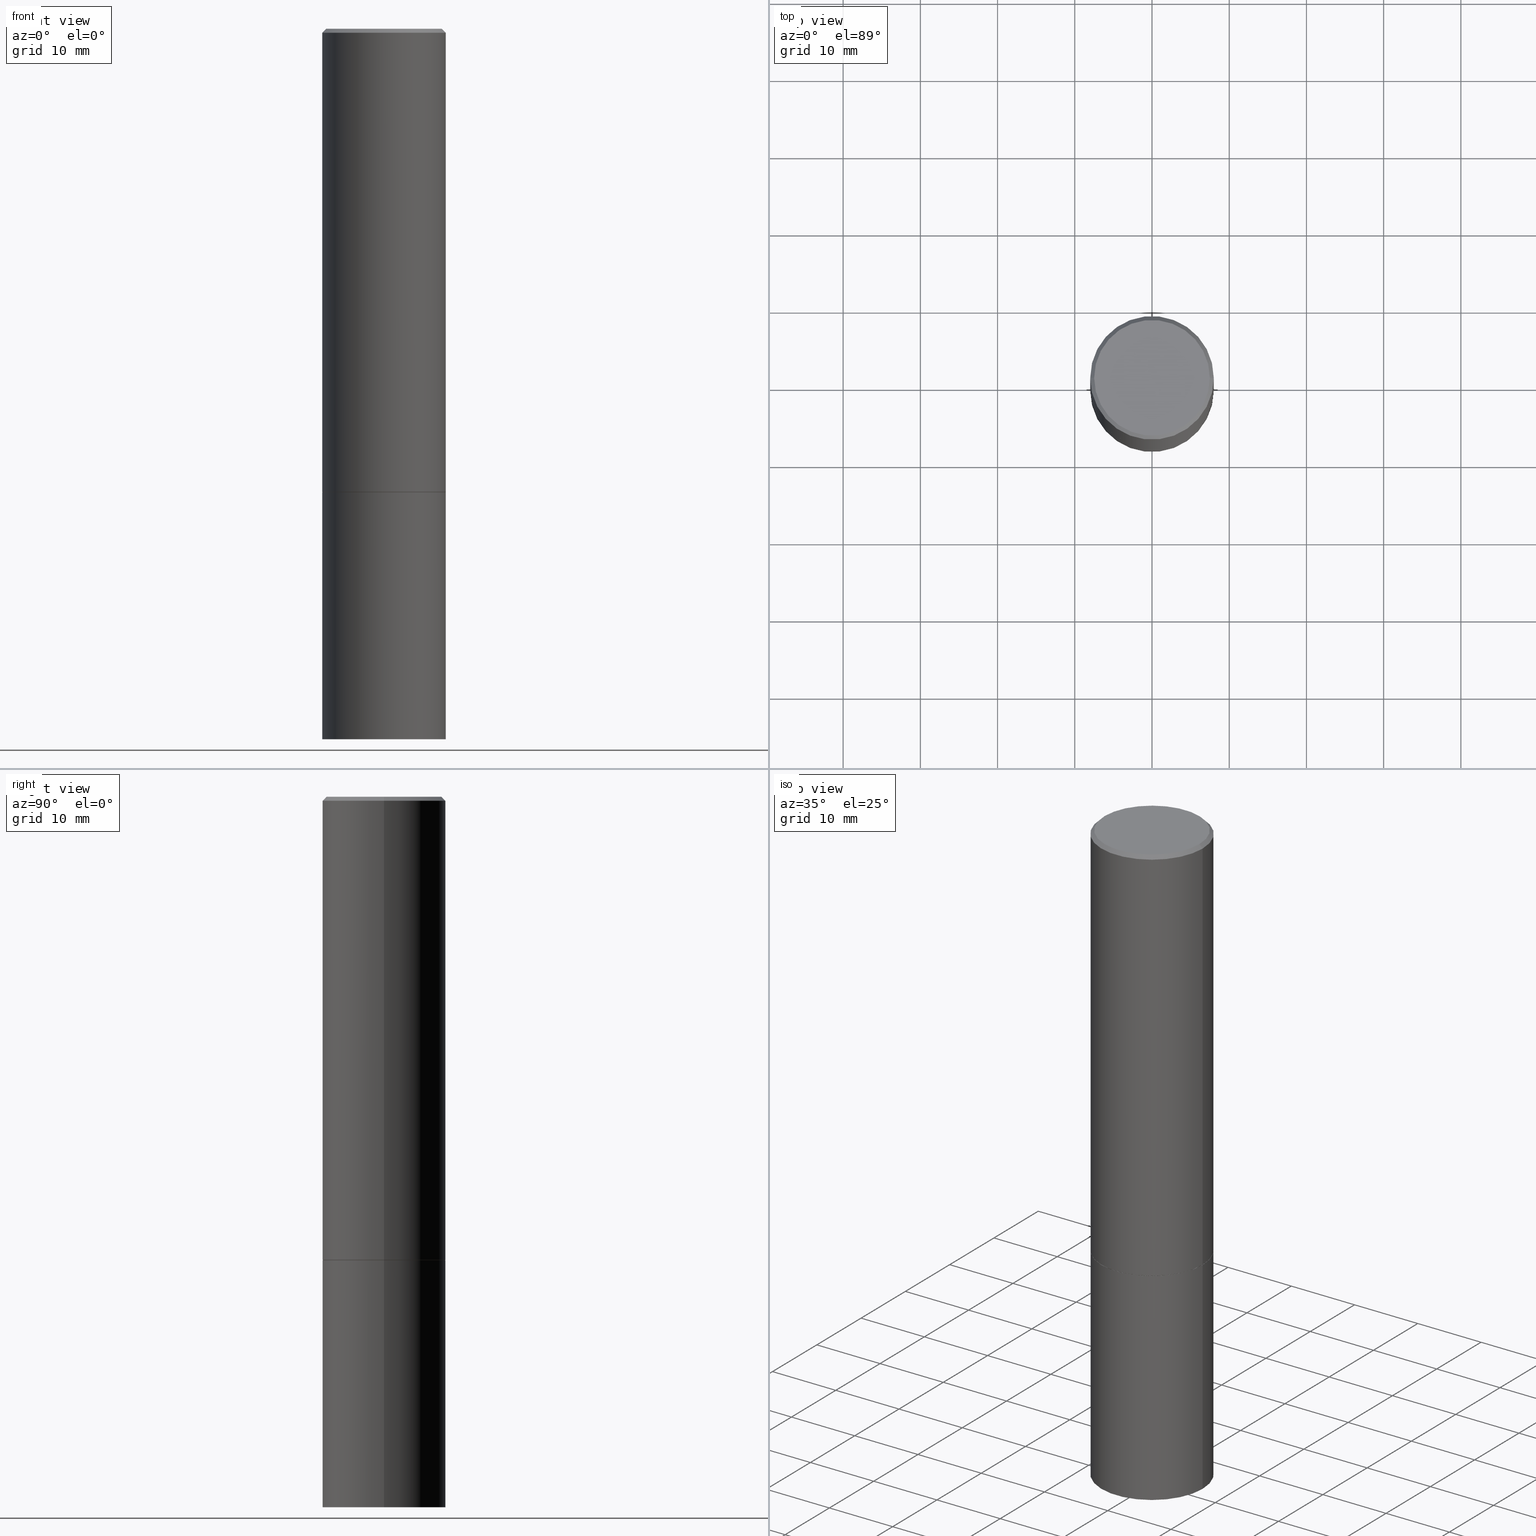
[diagram: canonical four-view strip — front | top / right | iso, engineering-drawing reading convention]
A machine part, canonical four-view strip (front | top / right | iso — engineering-drawing reading convention). The complete STEP part file that produces these views, byte-faithful:
ISO-10303-21;
HEADER;
FILE_DESCRIPTION (( 'STEP AP203' ),
    '1' );
FILE_NAME ('44538.STEP',
    '2024-02-28T06:25:11',
    ( '' ),
    ( '' ),
    'SwSTEP 2.0',
    'SolidWorks 2023',
    '' );
FILE_SCHEMA (( 'CONFIG_CONTROL_DESIGN' ));
ENDSEC;

DATA;
#1 = CARTESIAN_POINT ( 'NONE',  ( 5.774240945164344150E-29, -8.244085737276433464E-15, -2.361199999999999743 ) ) ;
#2 = AXIS2_PLACEMENT_3D ( 'NONE', #88, #201, #307 ) ;
#3 =( GEOMETRIC_REPRESENTATION_CONTEXT ( 3 ) GLOBAL_UNCERTAINTY_ASSIGNED_CONTEXT ( ( #100 ) ) GLOBAL_UNIT_ASSIGNED_CONTEXT ( ( #366, #140, #337 ) ) REPRESENTATION_CONTEXT ( 'NONE', 'WORKASPACE' ) );
#4 = APPROVAL_DATE_TIME ( #204, #15 ) ;
#5 = EDGE_CURVE ( 'NONE', #196, #302, #31, .T. ) ;
#6 = ORIENTED_EDGE ( 'NONE', *, *, #220, .T. ) ;
#7 = PERSON_AND_ORGANIZATION ( #300, #292 ) ;
#8 = EDGE_LOOP ( 'NONE', ( #63, #203, #6, #106 ) ) ;
#9 = CIRCLE ( 'NONE', #60, 0.3149500000000000077 ) ;
#10 = ORIENTED_EDGE ( 'NONE', *, *, #91, .T. ) ;
#11 = AXIS2_PLACEMENT_3D ( 'NONE', #166, #356, #363 ) ;
#12 = CARTESIAN_POINT ( 'NONE',  ( -0.3149499999999997302, 2.129454468560424601E-15, -0.02000000000000007327 ) ) ;
#13 = DESIGN_CONTEXT ( 'detailed design', #90, 'design' ) ;
#14 = CARTESIAN_POINT ( 'NONE',  ( 4.890937612370290675E-31, -6.982962677686316261E-17, -0.02000000000000007327 ) ) ;
#15 = APPROVAL ( #249, 'UNSPECIFIED' ) ;
#16 = FACE_OUTER_BOUND ( 'NONE', #294, .T. ) ;
#17 = DIRECTION ( 'NONE',  ( -2.445468806185136597E-29, 3.491481338843145583E-15, 1.000000000000000000 ) ) ;
#18 = CLOSED_SHELL ( 'NONE', ( #102, #144, #159, #365 ) ) ;
#19 = AXIS2_PLACEMENT_3D ( 'NONE', #242, #219, #263 ) ;
#20 = CARTESIAN_POINT ( 'NONE',  ( -0.3149499999999997302, 2.129454468560424601E-15, -0.02000000000000007327 ) ) ;
#21 = EDGE_CURVE ( 'NONE', #364, #111, #252, .T. ) ;
#22 = DIRECTION ( 'NONE',  ( -0.7071067811865466846, 2.468850131082247989E-15, -0.7071067811865483499 ) ) ;
#23 =( LENGTH_UNIT ( ) NAMED_UNIT ( * ) SI_UNIT ( $, .METRE. ) );
#24 = AXIS2_PLACEMENT_3D ( 'NONE', #154, #350, #288 ) ;
#25 = DIRECTION ( 'NONE',  ( -2.445468806185136597E-29, 3.491481338843145583E-15, 1.000000000000000000 ) ) ;
#26 = ADVANCED_FACE ( 'NONE', ( #94 ), #39, .F. ) ;
#27 = ORIENTED_EDGE ( 'NONE', *, *, #21, .F. ) ;
#28 = APPROVAL_STATUS ( 'not_yet_approved' ) ;
#29 = CARTESIAN_POINT ( 'NONE',  ( 0.000000000000000000, 0.000000000000000000, 0.000000000000000000 ) ) ;
#30 = CALENDAR_DATE ( 2024, 28, 2 ) ;
#31 = LINE ( 'NONE', #313, #68 ) ;
#32 = VECTOR ( 'NONE', #237, 39.37007874015748143 ) ;
#33 = CC_DESIGN_SECURITY_CLASSIFICATION ( #182, ( #158 ) ) ;
#34 = EDGE_LOOP ( 'NONE', ( #207, #37, #340, #27 ) ) ;
#35 = EDGE_CURVE ( 'NONE', #364, #341, #285, .T. ) ;
#36 = PERSON_AND_ORGANIZATION ( #300, #292 ) ;
#37 = ORIENTED_EDGE ( 'NONE', *, *, #139, .T. ) ;
#38 = ORIENTED_EDGE ( 'NONE', *, *, #359, .T. ) ;
#39 = PLANE ( 'NONE',  #86 ) ;
#40 = ORIENTED_EDGE ( 'NONE', *, *, #58, .F. ) ;
#41 = ADVANCED_FACE ( 'NONE', ( #223 ), #248, .T. ) ;
#42 = DIRECTION ( 'NONE',  ( -2.445468806185136597E-29, 3.491481338843145583E-15, 1.000000000000000000 ) ) ;
#43 = FACE_OUTER_BOUND ( 'NONE', #284, .T. ) ;
#44 = LINE ( 'NONE', #293, #32 ) ;
#45 = LOCAL_TIME ( 1, 25, 11.00000000000000000, #274 ) ;
#46 = FACE_OUTER_BOUND ( 'NONE', #177, .T. ) ;
#47 = DIRECTION ( 'NONE',  ( -2.445468806185136597E-29, 3.491481338843145583E-15, 1.000000000000000000 ) ) ;
#48 = APPROVAL_PERSON_ORGANIZATION ( #169, #197, #308 ) ;
#49 = DIRECTION ( 'NONE',  ( -2.445468806185136597E-29, 3.491481338843145583E-15, 1.000000000000000000 ) ) ;
#50 = DIRECTION ( 'NONE',  ( 1.000000000000000000, -6.982962677686263555E-15, 0.000000000000000000 ) ) ;
#51 = ORIENTED_EDGE ( 'NONE', *, *, #258, .T. ) ;
#52 = DIRECTION ( 'NONE',  ( -2.445468806185136597E-29, 3.491481338843145583E-15, 1.000000000000000000 ) ) ;
#53 = CALENDAR_DATE ( 2024, 28, 2 ) ;
#54 = MECHANICAL_CONTEXT ( 'NONE', #64, 'mechanical' ) ;
#55 = CARTESIAN_POINT ( 'NONE',  ( -0.3139500000000000624, -6.011529845348221459E-15, -2.362200000000000077 ) ) ;
#56 = COORDINATED_UNIVERSAL_TIME_OFFSET ( 5, 0, .BEHIND. ) ;
#57 = ORIENTED_EDGE ( 'NONE', *, *, #165, .T. ) ;
#58 = EDGE_CURVE ( 'NONE', #141, #111, #107, .T. ) ;
#59 = VERTEX_POINT ( 'NONE', #55 ) ;
#60 = AXIS2_PLACEMENT_3D ( 'NONE', #238, #267, #50 ) ;
#61 = APPROVAL_PERSON_ORGANIZATION ( #36, #336, #89 ) ;
#62 = DIRECTION ( 'NONE',  ( 0.000000000000000000, 0.000000000000000000, 1.000000000000000000 ) ) ;
#63 = ORIENTED_EDGE ( 'NONE', *, *, #91, .F. ) ;
#64 = APPLICATION_CONTEXT ( 'configuration controlled 3d designs of mechanical parts and assemblies' ) ;
#65 = CARTESIAN_POINT ( 'NONE',  ( 5.776686413970529753E-29, -8.247577218615279626E-15, -2.362200000000000077 ) ) ;
#66 = ORIENTED_EDGE ( 'NONE', *, *, #21, .T. ) ;
#67 = CARTESIAN_POINT ( 'NONE',  ( 5.776686413970529753E-29, -8.247577218615279626E-15, -2.362200000000000077 ) ) ;
#68 = VECTOR ( 'NONE', #110, 39.37007874015748143 ) ;
#69 = ORIENTED_EDGE ( 'NONE', *, *, #5, .F. ) ;
#70 = DIMENSIONAL_EXPONENTS ( 1.000000000000000000, 0.000000000000000000, 0.000000000000000000, 0.000000000000000000, 0.000000000000000000, 0.000000000000000000, 0.000000000000000000 ) ;
#71 = PLANE ( 'NONE',  #235 ) ;
#72 = EDGE_LOOP ( 'NONE', ( #69, #212, #327, #191 ) ) ;
#73 = EDGE_CURVE ( 'NONE', #148, #364, #171, .T. ) ;
#74 = CIRCLE ( 'NONE', #79, 0.3139500000000000624 ) ;
#75 = DIRECTION ( 'NONE',  ( -2.445468806185136597E-29, 3.491481338843145583E-15, 1.000000000000000000 ) ) ;
#76 = CARTESIAN_POINT ( 'NONE',  ( 4.890937612370290675E-31, -6.982962677686316261E-17, -0.02000000000000007327 ) ) ;
#77 = CARTESIAN_POINT ( 'NONE',  ( 0.000000000000000000, 0.000000000000000000, 0.000000000000000000 ) ) ;
#78 = ORIENTED_EDGE ( 'NONE', *, *, #332, .T. ) ;
#79 = AXIS2_PLACEMENT_3D ( 'NONE', #67, #75, #181 ) ;
#80 = AXIS2_PLACEMENT_3D ( 'NONE', #301, #49, #164 ) ;
#81 = DIRECTION ( 'NONE',  ( 1.000000000000000000, -6.982962677686266711E-15, 4.876176775795936353E-29 ) ) ;
#82 = CC_DESIGN_DATE_AND_TIME_ASSIGNMENT ( #344, #87, ( #112 ) ) ;
#83 = CARTESIAN_POINT ( 'NONE',  ( 8.857488016002564476E-29, -1.264614540928987199E-14, -3.621999999999999886 ) ) ;
#84 = ORIENTED_EDGE ( 'NONE', *, *, #139, .F. ) ;
#85 = DIRECTION ( 'NONE',  ( -0.7071067811864026886, 7.493145998869830357E-15, 0.7071067811866923458 ) ) ;
#86 = AXIS2_PLACEMENT_3D ( 'NONE', #345, #179, #315 ) ;
#87 = DATE_TIME_ROLE ( 'creation_date' ) ;
#88 = CARTESIAN_POINT ( 'NONE',  ( 4.890937612370290675E-31, -6.982962677686316261E-17, -0.02000000000000007327 ) ) ;
#89 = APPROVAL_ROLE ( '' ) ;
#90 = APPLICATION_CONTEXT ( 'configuration controlled 3d designs of mechanical parts and assemblies' ) ;
#91 = EDGE_CURVE ( 'NONE', #303, #111, #99, .T. ) ;
#92 = ORIENTED_EDGE ( 'NONE', *, *, #213, .F. ) ;
#93 = CONICAL_SURFACE ( 'NONE', #128, 0.3149499999999997302, 0.7853981633974471688 ) ;
#94 = FACE_OUTER_BOUND ( 'NONE', #347, .T. ) ;
#95 = ORIENTED_EDGE ( 'NONE', *, *, #268, .T. ) ;
#96 = CC_DESIGN_PERSON_AND_ORGANIZATION_ASSIGNMENT ( #7, #138, ( #112 ) ) ;
#97 = CALENDAR_DATE ( 2024, 28, 2 ) ;
#98 = DIRECTION ( 'NONE',  ( 1.000000000000000000, -6.982962677686263555E-15, 0.000000000000000000 ) ) ;
#99 = LINE ( 'NONE', #255, #142 ) ;
#100 = UNCERTAINTY_MEASURE_WITH_UNIT (LENGTH_MEASURE( 1.000000000000000082E-05 ), #366, 'distance_accuracy_value', 'NONE');
#101 = FACE_OUTER_BOUND ( 'NONE', #173, .T. ) ;
#102 = ADVANCED_FACE ( 'NONE', ( #16 ), #184, .T. ) ;
#103 = DIRECTION ( 'NONE',  ( -1.000000000000000000, 6.982962677686265922E-15, -4.876176775795935793E-29 ) ) ;
#104 = FACE_OUTER_BOUND ( 'NONE', #333, .T. ) ;
#105 = DIRECTION ( 'NONE',  ( -2.445468806185136597E-29, 3.491481338843145583E-15, 1.000000000000000000 ) ) ;
#106 = ORIENTED_EDGE ( 'NONE', *, *, #58, .T. ) ;
#107 = CIRCLE ( 'NONE', #2, 0.3149499999999997302 ) ;
#108 = DIRECTION ( 'NONE',  ( 2.445468806185136597E-29, -3.491481338843145583E-15, -1.000000000000000000 ) ) ;
#109 = PLANE ( 'NONE',  #355 ) ;
#110 = DIRECTION ( 'NONE',  ( -2.445468806185136877E-29, 3.491481338843145188E-15, 1.000000000000000000 ) ) ;
#111 = VERTEX_POINT ( 'NONE', #125 ) ;
#112 = PRODUCT_DEFINITION ( 'UNKNOWN', '', #158, #13 ) ;
#113 = DATE_TIME_ROLE ( 'classification_date' ) ;
#114 = CIRCLE ( 'NONE', #361, 0.3149499999999997302 ) ;
#115 = DIRECTION ( 'NONE',  ( -2.445468806185136597E-29, 3.491481338843145583E-15, 1.000000000000000000 ) ) ;
#116 = VERTEX_POINT ( 'NONE', #256 ) ;
#117 = PERSON_AND_ORGANIZATION_ROLE ( 'creator' ) ;
#118 = APPROVAL_DATE_TIME ( #278, #336 ) ;
#119 = ORIENTED_EDGE ( 'NONE', *, *, #73, .T. ) ;
#120 = PERSON_AND_ORGANIZATION_ROLE ( 'design_supplier' ) ;
#121 = ORIENTED_EDGE ( 'NONE', *, *, #268, .F. ) ;
#122 = ORIENTED_EDGE ( 'NONE', *, *, #187, .F. ) ;
#123 = DIRECTION ( 'NONE',  ( -1.000000000000000000, 6.982962677686265922E-15, -4.876176775795935793E-29 ) ) ;
#124 = DIRECTION ( 'NONE',  ( 1.000000000000000000, -6.982962677686266711E-15, 4.876176775795936353E-29 ) ) ;
#125 = CARTESIAN_POINT ( 'NONE',  ( 0.3149499999999997302, -2.230543471175005478E-15, -0.02000000000000007327 ) ) ;
#126 = CC_DESIGN_PERSON_AND_ORGANIZATION_ASSIGNMENT ( #271, #251, ( #182 ) ) ;
#127 = CARTESIAN_POINT ( 'NONE',  ( 5.776686413970529753E-29, -8.247577218615278049E-15, -2.362199999999999633 ) ) ;
#128 = AXIS2_PLACEMENT_3D ( 'NONE', #14, #322, #155 ) ;
#129 = APPROVAL_PERSON_ORGANIZATION ( #143, #15, #200 ) ;
#130 = CARTESIAN_POINT ( 'NONE',  ( 5.776686413970529753E-29, -8.247577218615279626E-15, -2.362200000000000077 ) ) ;
#131 = ORIENTED_EDGE ( 'NONE', *, *, #351, .F. ) ;
#132 = DIRECTION ( 'NONE',  ( -1.000000000000000000, 6.982962677686265922E-15, -4.876176775795935793E-29 ) ) ;
#133 = PRODUCT_DEFINITION_SHAPE ( 'NONE', 'NONE',  #112 ) ;
#134 = EDGE_CURVE ( 'NONE', #116, #280, #160, .T. ) ;
#135 = CIRCLE ( 'NONE', #211, 0.3149500000000000077 ) ;
#136 = CIRCLE ( 'NONE', #189, 0.3149500000000000077 ) ;
#137 = CARTESIAN_POINT ( 'NONE',  ( -0.2949499999999997124, 2.094539655171993740E-15, 4.268512490085885145E-18 ) ) ;
#138 = PERSON_AND_ORGANIZATION_ROLE ( 'creator' ) ;
#139 = EDGE_CURVE ( 'NONE', #341, #141, #44, .T. ) ;
#140 =( NAMED_UNIT ( * ) PLANE_ANGLE_UNIT ( ) SI_UNIT ( $, .RADIAN. ) );
#141 = VERTEX_POINT ( 'NONE', #12 ) ;
#142 = VECTOR ( 'NONE', #190, 39.37007874015748143 ) ;
#143 = PERSON_AND_ORGANIZATION ( #300, #292 ) ;
#144 = ADVANCED_FACE ( 'NONE', ( #46 ), #257, .T. ) ;
#145 = ORIENTED_EDGE ( 'NONE', *, *, #359, .F. ) ;
#146 = ORIENTED_EDGE ( 'NONE', *, *, #273, .T. ) ;
#147 = ORIENTED_EDGE ( 'NONE', *, *, #187, .T. ) ;
#148 = VERTEX_POINT ( 'NONE', #349 ) ;
#149 = AXIS2_PLACEMENT_3D ( 'NONE', #348, #42, #124 ) ;
#150 = DIRECTION ( 'NONE',  ( -2.445468806185136597E-29, 3.491481338843145583E-15, 1.000000000000000000 ) ) ;
#151 = AXIS2_PLACEMENT_3D ( 'NONE', #130, #295, #357 ) ;
#152 = DATE_AND_TIME ( #320, #265 ) ;
#153 = ADVANCED_FACE ( 'NONE', ( #185 ), #93, .T. ) ;
#154 = CARTESIAN_POINT ( 'NONE',  ( -1.043851414335219820E-46, 1.490343170380447200E-32, 4.268512490100411279E-18 ) ) ;
#155 = DIRECTION ( 'NONE',  ( -1.000000000000000000, 6.982962677686266711E-15, 0.000000000000000000 ) ) ;
#156 = VECTOR ( 'NONE', #22, 39.37007874015748143 ) ;
#157 = VECTOR ( 'NONE', #85, 39.37007874015748143 ) ;
#158 = PRODUCT_DEFINITION_FORMATION_WITH_SPECIFIED_SOURCE ( 'ANY', '', #202, .NOT_KNOWN. ) ;
#159 = ADVANCED_FACE ( 'NONE', ( #101 ), #71, .F. ) ;
#160 = LINE ( 'NONE', #260, #309 ) ;
#161 = CARTESIAN_POINT ( 'NONE',  ( 2.059624841783562091E-15, 0.2949499999999997124, -1.027678164646734579E-15 ) ) ;
#162 = DIRECTION ( 'NONE',  ( 1.000000000000000000, -6.982962677686267499E-15, 4.876053491004739391E-29 ) ) ;
#163 = AXIS2_PLACEMENT_3D ( 'NONE', #360, #25, #81 ) ;
#164 = DIRECTION ( 'NONE',  ( 1.000000000000000000, -6.982962677686266711E-15, 0.000000000000000000 ) ) ;
#165 = EDGE_CURVE ( 'NONE', #247, #303, #218, .T. ) ;
#166 = CARTESIAN_POINT ( 'NONE',  ( 5.774240945164344150E-29, -8.244085737276433464E-15, -2.361199999999999743 ) ) ;
#167 = CYLINDRICAL_SURFACE ( 'NONE', #163, 0.3149500000000000077 ) ;
#168 = EDGE_LOOP ( 'NONE', ( #147, #95, #316, #321 ) ) ;
#169 = PERSON_AND_ORGANIZATION ( #300, #292 ) ;
#170 = CC_DESIGN_PERSON_AND_ORGANIZATION_ASSIGNMENT ( #312, #178, ( #202 ) ) ;
#171 = LINE ( 'NONE', #346, #297 ) ;
#172 = COORDINATED_UNIVERSAL_TIME_OFFSET ( 5, 0, .BEHIND. ) ;
#173 = EDGE_LOOP ( 'NONE', ( #334, #146 ) ) ;
#174 = DIRECTION ( 'NONE',  ( 1.000000000000000000, 0.000000000000000000, 0.000000000000000000 ) ) ;
#175 = CC_DESIGN_APPROVAL ( #15, ( #158 ) ) ;
#176 = ORIENTED_EDGE ( 'NONE', *, *, #281, .T. ) ;
#177 = EDGE_LOOP ( 'NONE', ( #250, #92 ) ) ;
#178 = PERSON_AND_ORGANIZATION_ROLE ( 'design_owner' ) ;
#179 = DIRECTION ( 'NONE',  ( -2.438088387897960049E-29, 3.491481338843145188E-15, 1.000000000000000000 ) ) ;
#180 = DIRECTION ( 'NONE',  ( 1.000000000000000000, -6.982962677686265133E-15, 0.000000000000000000 ) ) ;
#181 = DIRECTION ( 'NONE',  ( 1.000000000000000000, -6.982962677686265133E-15, 0.000000000000000000 ) ) ;
#182 = SECURITY_CLASSIFICATION ( '', '', #229 ) ;
#183 = ADVANCED_FACE ( 'NONE', ( #214 ), #318, .T. ) ;
#184 = CYLINDRICAL_SURFACE ( 'NONE', #149, 0.3149500000000000077 ) ;
#185 = FACE_OUTER_BOUND ( 'NONE', #8, .T. ) ;
#186 = ORIENTED_EDGE ( 'NONE', *, *, #134, .F. ) ;
#187 = EDGE_CURVE ( 'NONE', #148, #59, #74, .T. ) ;
#188 = CLOSED_SHELL ( 'NONE', ( #41, #183, #205, #153, #289, #227, #26, #299 ) ) ;
#189 = AXIS2_PLACEMENT_3D ( 'NONE', #127, #105, #193 ) ;
#190 = DIRECTION ( 'NONE',  ( 0.7071067811865466846, -7.319954787623252890E-15, -0.7071067811865483499 ) ) ;
#191 = ORIENTED_EDGE ( 'NONE', *, *, #273, .F. ) ;
#192 = CARTESIAN_POINT ( 'NONE',  ( -0.3139500000000000624, -6.016828299696443861E-15, -2.362200000000000077 ) ) ;
#193 = DIRECTION ( 'NONE',  ( 1.000000000000000000, -6.982962677686266711E-15, 0.000000000000000000 ) ) ;
#194 = DIRECTION ( 'NONE',  ( -1.000000000000000000, 6.982962677686266711E-15, 0.000000000000000000 ) ) ;
#195 = LINE ( 'NONE', #192, #157 ) ;
#196 = VERTEX_POINT ( 'NONE', #287 ) ;
#197 = APPROVAL ( #28, 'UNSPECIFIED' ) ;
#198 = LINE ( 'NONE', #20, #156 ) ;
#199 = AXIS2_PLACEMENT_3D ( 'NONE', #29, #62, #174 ) ;
#200 = APPROVAL_ROLE ( '' ) ;
#201 = DIRECTION ( 'NONE',  ( -2.445468806185136597E-29, 3.491481338843145583E-15, 1.000000000000000000 ) ) ;
#202 = PRODUCT ( '44538', '44538', '', ( #54 ) ) ;
#203 = ORIENTED_EDGE ( 'NONE', *, *, #165, .F. ) ;
#204 = DATE_AND_TIME ( #226, #338 ) ;
#205 = ADVANCED_FACE ( 'NONE', ( #43 ), #310, .T. ) ;
#206 = CIRCLE ( 'NONE', #11, 0.3149500000000000077 ) ;
#207 = ORIENTED_EDGE ( 'NONE', *, *, #35, .T. ) ;
#208 = DATE_AND_TIME ( #97, #343 ) ;
#209 = EDGE_LOOP ( 'NONE', ( #121, #51, #119, #276 ) ) ;
#210 = CARTESIAN_POINT ( 'NONE',  ( 2.199284095337378223E-15, 0.3149499999999873512, -3.622000000000000774 ) ) ;
#211 = AXIS2_PLACEMENT_3D ( 'NONE', #83, #17, #240 ) ;
#212 = ORIENTED_EDGE ( 'NONE', *, *, #213, .T. ) ;
#213 = EDGE_CURVE ( 'NONE', #196, #116, #9, .T. ) ;
#214 = FACE_OUTER_BOUND ( 'NONE', #34, .T. ) ;
#215 = DIRECTION ( 'NONE',  ( -2.445468806185136597E-29, 3.491481338843145583E-15, 1.000000000000000000 ) ) ;
#216 = FACE_OUTER_BOUND ( 'NONE', #228, .T. ) ;
#217 = CARTESIAN_POINT ( 'NONE',  ( 0.3149500000000000077, -1.044686131395256792E-14, -2.362199999999999633 ) ) ;
#218 = CIRCLE ( 'NONE', #24, 0.2949499999999997124 ) ;
#219 = DIRECTION ( 'NONE',  ( -2.445468806185136597E-29, 3.491481338843145583E-15, 1.000000000000000000 ) ) ;
#220 = EDGE_CURVE ( 'NONE', #247, #141, #198, .T. ) ;
#221 = CARTESIAN_POINT ( 'NONE',  ( 0.2949499999999997124, -2.127023677808858103E-15, 4.268512490115050658E-18 ) ) ;
#222 = APPLICATION_PROTOCOL_DEFINITION ( 'international standard', 'config_control_design', 1994, #90 ) ;
#223 = FACE_OUTER_BOUND ( 'NONE', #168, .T. ) ;
#224 = AXIS2_PLACEMENT_3D ( 'NONE', #77, #244, #304 ) ;
#225 = LENGTH_MEASURE_WITH_UNIT ( LENGTH_MEASURE( 0.02539999999999999897 ), #23 );
#226 = CALENDAR_DATE ( 2024, 28, 2 ) ;
#227 = ADVANCED_FACE ( 'NONE', ( #241 ), #354, .T. ) ;
#228 = EDGE_LOOP ( 'NONE', ( #57, #38 ) ) ;
#229 = SECURITY_CLASSIFICATION_LEVEL ( 'unclassified' ) ;
#230 = CARTESIAN_POINT ( 'NONE',  ( 0.3149499999999998967, -2.199284095337288688E-15, 1.535751875536929289E-29 ) ) ;
#231 = CC_DESIGN_PERSON_AND_ORGANIZATION_ASSIGNMENT ( #245, #120, ( #158 ) ) ;
#232 = CARTESIAN_POINT ( 'NONE',  ( 2.199284095337347063E-15, 0.3149499999999917366, -2.362200000000000966 ) ) ;
#233 = DIRECTION ( 'NONE',  ( 0.7071067811864026886, -2.468850131080739687E-15, 0.7071067811866923458 ) ) ;
#234 = MANIFOLD_SOLID_BREP ( 'Body-Move/Copy2[1]', #18 ) ;
#235 = AXIS2_PLACEMENT_3D ( 'NONE', #232, #259, #103 ) ;
#236 = EDGE_CURVE ( 'NONE', #116, #196, #135, .T. ) ;
#237 = DIRECTION ( 'NONE',  ( -2.445468806185136877E-29, 3.491481338843145188E-15, 1.000000000000000000 ) ) ;
#238 = CARTESIAN_POINT ( 'NONE',  ( 8.857488016002564476E-29, -1.264614540928987199E-14, -3.621999999999999886 ) ) ;
#239 = CIRCLE ( 'NONE', #286, 0.2949499999999997124 ) ;
#240 = DIRECTION ( 'NONE',  ( 1.000000000000000000, -6.982962677686263555E-15, 0.000000000000000000 ) ) ;
#241 = FACE_OUTER_BOUND ( 'NONE', #209, .T. ) ;
#242 = CARTESIAN_POINT ( 'NONE',  ( 5.776686413970529753E-29, -8.247577218615279626E-15, -2.362200000000000077 ) ) ;
#243 = LOCAL_TIME ( 1, 25, 11.00000000000000000, #172 ) ;
#244 = DIRECTION ( 'NONE',  ( -2.445468806185136597E-29, 3.491481338843145583E-15, 1.000000000000000000 ) ) ;
#245 = PERSON_AND_ORGANIZATION ( #300, #292 ) ;
#246 = COORDINATED_UNIVERSAL_TIME_OFFSET ( 5, 0, .BEHIND. ) ;
#247 = VERTEX_POINT ( 'NONE', #137 ) ;
#248 = CONICAL_SURFACE ( 'NONE', #342, 0.3139500000000000624, 0.7853981633972434429 ) ;
#249 = APPROVAL_STATUS ( 'not_yet_approved' ) ;
#250 = ORIENTED_EDGE ( 'NONE', *, *, #236, .F. ) ;
#251 = PERSON_AND_ORGANIZATION_ROLE ( 'classification_officer' ) ;
#252 = LINE ( 'NONE', #230, #264 ) ;
#253 = PERSON_AND_ORGANIZATION ( #300, #292 ) ;
#254 = CC_DESIGN_DATE_AND_TIME_ASSIGNMENT ( #208, #113, ( #182 ) ) ;
#255 = CARTESIAN_POINT ( 'NONE',  ( 0.3149499999999997302, -2.230543471175005478E-15, -0.02000000000000007327 ) ) ;
#256 = CARTESIAN_POINT ( 'NONE',  ( 0.3149500000000000077, -1.484542950462716186E-14, -3.621999999999999886 ) ) ;
#257 = PLANE ( 'NONE',  #325 ) ;
#258 = EDGE_CURVE ( 'NONE', #59, #148, #305, .T. ) ;
#259 = DIRECTION ( 'NONE',  ( 2.438088387897960049E-29, -3.491481338843145188E-15, -1.000000000000000000 ) ) ;
#260 = CARTESIAN_POINT ( 'NONE',  ( 0.3149500000000000077, -2.199284095337289871E-15, 1.535751875536930130E-29 ) ) ;
#261 = CARTESIAN_POINT ( 'NONE',  ( -0.3149500000000000077, -8.209006967676139823E-15, -2.362199999999999633 ) ) ;
#262 = PRODUCT_RELATED_PRODUCT_CATEGORY ( 'detail', '', ( #202 ) ) ;
#263 = DIRECTION ( 'NONE',  ( 1.000000000000000000, -6.982962677686265133E-15, 0.000000000000000000 ) ) ;
#264 = VECTOR ( 'NONE', #282, 39.37007874015748143 ) ;
#265 = LOCAL_TIME ( 1, 25, 11.00000000000000000, #56 ) ;
#266 = ORIENTED_EDGE ( 'NONE', *, *, #258, .F. ) ;
#267 = DIRECTION ( 'NONE',  ( -2.445468806185136597E-29, 3.491481338843145583E-15, 1.000000000000000000 ) ) ;
#268 = EDGE_CURVE ( 'NONE', #59, #341, #195, .T. ) ;
#269 = CARTESIAN_POINT ( 'NONE',  ( -1.043851414335219820E-46, 1.490343170380447200E-32, 4.268512490100411279E-18 ) ) ;
#270 = CARTESIAN_POINT ( 'NONE',  ( 0.3149500000000000077, -1.044336983261372333E-14, -2.361199999999999743 ) ) ;
#271 = PERSON_AND_ORGANIZATION ( #300, #292 ) ;
#272 = APPROVAL_STATUS ( 'not_yet_approved' ) ;
#273 = EDGE_CURVE ( 'NONE', #302, #280, #136, .T. ) ;
#274 = COORDINATED_UNIVERSAL_TIME_OFFSET ( 5, 0, .BEHIND. ) ;
#275 = ORIENTED_EDGE ( 'NONE', *, *, #236, .T. ) ;
#276 = ORIENTED_EDGE ( 'NONE', *, *, #281, .F. ) ;
#277 = AXIS2_PLACEMENT_3D ( 'NONE', #323, #215, #326 ) ;
#278 = DATE_AND_TIME ( #53, #243 ) ;
#279 = ORIENTED_EDGE ( 'NONE', *, *, #5, .T. ) ;
#280 = VERTEX_POINT ( 'NONE', #217 ) ;
#281 = EDGE_CURVE ( 'NONE', #341, #364, #206, .T. ) ;
#282 = DIRECTION ( 'NONE',  ( -2.445468806185136877E-29, 3.491481338843145188E-15, 1.000000000000000000 ) ) ;
#283 = ORIENTED_EDGE ( 'NONE', *, *, #220, .F. ) ;
#284 = EDGE_LOOP ( 'NONE', ( #145, #10, #78, #283 ) ) ;
#285 = CIRCLE ( 'NONE', #331, 0.3149500000000000077 ) ;
#286 = AXIS2_PLACEMENT_3D ( 'NONE', #269, #47, #162 ) ;
#287 = CARTESIAN_POINT ( 'NONE',  ( -0.3149500000000000077, -8.209006967676139823E-15, -3.621999999999999886 ) ) ;
#288 = DIRECTION ( 'NONE',  ( 1.000000000000000000, -6.982962677686267499E-15, 4.876053491004739391E-29 ) ) ;
#289 = ADVANCED_FACE ( 'NONE', ( #104 ), #329, .T. ) ;
#290 = DIRECTION ( 'NONE',  ( -2.445468806185136877E-29, 3.491481338843145188E-15, 1.000000000000000000 ) ) ;
#291 = AXIS2_PLACEMENT_3D ( 'NONE', #328, #108, #194 ) ;
#292 = ORGANIZATION ( 'UNSPECIFIED', 'UNSPECIFIED', '' ) ;
#293 = CARTESIAN_POINT ( 'NONE',  ( -0.3149499999999998967, 2.237854346276434801E-15, -1.549218606675782116E-29 ) ) ;
#294 = EDGE_LOOP ( 'NONE', ( #275, #279, #131, #186 ) ) ;
#295 = DIRECTION ( 'NONE',  ( -2.445468806185136597E-29, 3.491481338843145583E-15, 1.000000000000000000 ) ) ;
#296 = FACE_OUTER_BOUND ( 'NONE', #72, .T. ) ;
#297 = VECTOR ( 'NONE', #233, 39.37007874015748143 ) ;
#298 = CARTESIAN_POINT ( 'NONE',  ( -0.3149500000000000077, -1.919103335750211213E-15, -2.361199999999999743 ) ) ;
#299 = ADVANCED_FACE ( 'NONE', ( #216 ), #109, .F. ) ;
#300 = PERSON ( 'UNSPECIFIED', 'UNSPECIFIED', 'UNSPECIFIED', ('UNSPECIFIED'), ('UNSPECIFIED'), ('UNSPECIFIED') ) ;
#301 = CARTESIAN_POINT ( 'NONE',  ( 5.776686413970529753E-29, -8.247577218615278049E-15, -2.362199999999999633 ) ) ;
#302 = VERTEX_POINT ( 'NONE', #261 ) ;
#303 = VERTEX_POINT ( 'NONE', #221 ) ;
#304 = DIRECTION ( 'NONE',  ( 1.000000000000000000, -6.982962677686265922E-15, 4.876176775795935232E-29 ) ) ;
#305 = CIRCLE ( 'NONE', #151, 0.3139500000000000624 ) ;
#306 = COORDINATED_UNIVERSAL_TIME_OFFSET ( 5, 0, .BEHIND. ) ;
#307 = DIRECTION ( 'NONE',  ( 1.000000000000000000, -6.982962677686266711E-15, 0.000000000000000000 ) ) ;
#308 = APPROVAL_ROLE ( '' ) ;
#309 = VECTOR ( 'NONE', #290, 39.37007874015748143 ) ;
#310 = CONICAL_SURFACE ( 'NONE', #291, 0.3149499999999997302, 0.7853981633974471688 ) ;
#311 = CC_DESIGN_APPROVAL ( #336, ( #112 ) ) ;
#312 = PERSON_AND_ORGANIZATION ( #300, #292 ) ;
#313 = CARTESIAN_POINT ( 'NONE',  ( -0.3149500000000000077, 2.237854346276435590E-15, -1.549218606675782676E-29 ) ) ;
#314 = SHAPE_DEFINITION_REPRESENTATION ( #133, #352 ) ;
#315 = DIRECTION ( 'NONE',  ( 1.000000000000000000, -6.982962677686265922E-15, 4.876176775795935793E-29 ) ) ;
#316 = ORIENTED_EDGE ( 'NONE', *, *, #35, .F. ) ;
#317 = APPROVAL_DATE_TIME ( #152, #197 ) ;
#318 = CYLINDRICAL_SURFACE ( 'NONE', #277, 0.3149499999999998967 ) ;
#319 = CIRCLE ( 'NONE', #80, 0.3149500000000000077 ) ;
#320 = CALENDAR_DATE ( 2024, 28, 2 ) ;
#321 = ORIENTED_EDGE ( 'NONE', *, *, #73, .F. ) ;
#322 = DIRECTION ( 'NONE',  ( 2.445468806185136597E-29, -3.491481338843145583E-15, -1.000000000000000000 ) ) ;
#323 = CARTESIAN_POINT ( 'NONE',  ( 0.000000000000000000, 0.000000000000000000, 0.000000000000000000 ) ) ;
#324 = CC_DESIGN_PERSON_AND_ORGANIZATION_ASSIGNMENT ( #253, #117, ( #158 ) ) ;
#325 = AXIS2_PLACEMENT_3D ( 'NONE', #210, #353, #123 ) ;
#326 = DIRECTION ( 'NONE',  ( 1.000000000000000000, -6.982962677686265922E-15, 4.876176775795935232E-29 ) ) ;
#327 = ORIENTED_EDGE ( 'NONE', *, *, #134, .T. ) ;
#328 = CARTESIAN_POINT ( 'NONE',  ( 4.890937612370290675E-31, -6.982962677686316261E-17, -0.02000000000000007327 ) ) ;
#329 = CYLINDRICAL_SURFACE ( 'NONE', #224, 0.3149499999999998967 ) ;
#330 = DIRECTION ( 'NONE',  ( 2.438088387897960049E-29, -3.491481338843145188E-15, -1.000000000000000000 ) ) ;
#331 = AXIS2_PLACEMENT_3D ( 'NONE', #1, #115, #98 ) ;
#332 = EDGE_CURVE ( 'NONE', #111, #141, #114, .T. ) ;
#333 = EDGE_LOOP ( 'NONE', ( #84, #176, #66, #40 ) ) ;
#334 = ORIENTED_EDGE ( 'NONE', *, *, #351, .T. ) ;
#335 = DIRECTION ( 'NONE',  ( 1.000000000000000000, -6.982962677686266711E-15, 0.000000000000000000 ) ) ;
#336 = APPROVAL ( #272, 'UNSPECIFIED' ) ;
#337 =( NAMED_UNIT ( * ) SI_UNIT ( $, .STERADIAN. ) SOLID_ANGLE_UNIT ( ) );
#338 = LOCAL_TIME ( 1, 25, 11.00000000000000000, #306 ) ;
#339 = APPLICATION_PROTOCOL_DEFINITION ( 'international standard', 'config_control_design', 1994, #64 ) ;
#340 = ORIENTED_EDGE ( 'NONE', *, *, #332, .F. ) ;
#341 = VERTEX_POINT ( 'NONE', #298 ) ;
#342 = AXIS2_PLACEMENT_3D ( 'NONE', #65, #150, #180 ) ;
#343 = LOCAL_TIME ( 1, 25, 11.00000000000000000, #246 ) ;
#344 = DATE_AND_TIME ( #30, #45 ) ;
#345 = CARTESIAN_POINT ( 'NONE',  ( 5.776686413970529753E-29, -8.247577218615278049E-15, -2.362199999999999633 ) ) ;
#346 = CARTESIAN_POINT ( 'NONE',  ( 0.3139500000000000624, -1.043987835127488191E-14, -2.362200000000000077 ) ) ;
#347 = EDGE_LOOP ( 'NONE', ( #122, #266 ) ) ;
#348 = CARTESIAN_POINT ( 'NONE',  ( 0.000000000000000000, 0.000000000000000000, 0.000000000000000000 ) ) ;
#349 = CARTESIAN_POINT ( 'NONE',  ( 0.3139500000000000624, -1.043987835127488191E-14, -2.362200000000000077 ) ) ;
#350 = DIRECTION ( 'NONE',  ( -2.445468806185136597E-29, 3.491481338843145583E-15, 1.000000000000000000 ) ) ;
#351 = EDGE_CURVE ( 'NONE', #280, #302, #319, .T. ) ;
#352 = ADVANCED_BREP_SHAPE_REPRESENTATION ( '44538', ( #234, #358, #199 ), #3 ) ;
#353 = DIRECTION ( 'NONE',  ( 2.438088387897960049E-29, -3.491481338843145188E-15, -1.000000000000000000 ) ) ;
#354 = CONICAL_SURFACE ( 'NONE', #19, 0.3139500000000000624, 0.7853981633972434429 ) ;
#355 = AXIS2_PLACEMENT_3D ( 'NONE', #161, #330, #132 ) ;
#356 = DIRECTION ( 'NONE',  ( -2.445468806185136597E-29, 3.491481338843145583E-15, 1.000000000000000000 ) ) ;
#357 = DIRECTION ( 'NONE',  ( 1.000000000000000000, -6.982962677686265133E-15, 0.000000000000000000 ) ) ;
#358 = MANIFOLD_SOLID_BREP ( 'Body-Move/Copy2[2]', #188 ) ;
#359 = EDGE_CURVE ( 'NONE', #303, #247, #239, .T. ) ;
#360 = CARTESIAN_POINT ( 'NONE',  ( 0.000000000000000000, 0.000000000000000000, 0.000000000000000000 ) ) ;
#361 = AXIS2_PLACEMENT_3D ( 'NONE', #76, #52, #335 ) ;
#362 = CC_DESIGN_APPROVAL ( #197, ( #182 ) ) ;
#363 = DIRECTION ( 'NONE',  ( 1.000000000000000000, -6.982962677686263555E-15, 0.000000000000000000 ) ) ;
#364 = VERTEX_POINT ( 'NONE', #270 ) ;
#365 = ADVANCED_FACE ( 'NONE', ( #296 ), #167, .T. ) ;
#366 =( CONVERSION_BASED_UNIT ( 'INCH', #225 ) LENGTH_UNIT ( ) NAMED_UNIT ( #70 ) );
ENDSEC;
END-ISO-10303-21;
